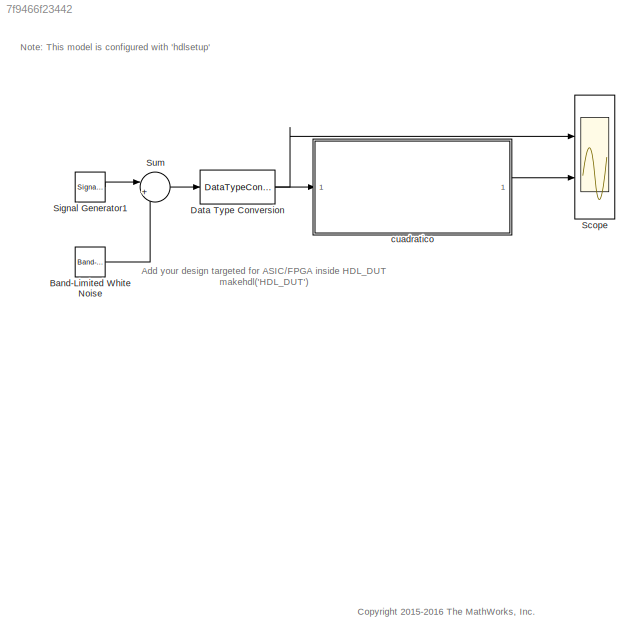
MODEL slx_7f9466f23442
KIND model
CONFIG AbsTol = auto
CONFIG EnableMultiTasking = off
CONFIG FixedStep = auto
CONFIG MaxStep = auto
CONFIG MinStep = auto
CONFIG RelTol = 1e-3
CONFIG SampleTimeConstraint = Unconstrained
CONFIG Solver = VariableStepAuto
CONFIG SolverName = VariableStepAuto
CONFIG StartTime = 0.0
CONFIG StopTime = 10.0
BLOCK [Reference] Band-Limited White Noise  REF=simulink/Sources/Band-Limited
White Noise
  Ports = [0, 1]
  SourceBlock = simulink/Sources/Band-Limited\nWhite Noise
  SourceProductBaseCode = SL
  SourceProductName = Simulink
  SourceType = Band-Limited White Noise.
BLOCK [DataTypeConversion] Data Type Conversion
  OutDataTypeStr = fixdt(1,16,10)
  RndMeth = Floor
  SaturateOnIntegerOverflow = off
BLOCK [Scope] Scope
  NumInputPorts = 2
  Ports = [2]
  ScopeSpecificationString = Simulink.scopes.TimeScopeBlockCfg('CurrentConfiguration', extmgr.ConfigurationSet(extmgr.Configuration('Core','General UI',true),extmgr.Configuration('Core','Source UI',true),extmgr.Configuration('Sources','WiredSimulink',true,'DataLoggingSaveFormat','Array','DataLoggingDecimation','1'),extmgr.Configuration('Visuals','Time Domain',true,'SerializedDisplays',{struct('MinYLimReal','-4.64136','MaxYLim...<+2282ch>
BLOCK [SignalGenerator] Signal Generator1
  Frequency = 2000
  Ports = [0, 1]
BLOCK [Sum] Sum
  IconShape = round
  InputSameDT = off
  Inputs = |++
  OutDataTypeStr = Inherit: Inherit via internal rule
  Ports = [2, 1]
  SaturateOnIntegerOverflow = off
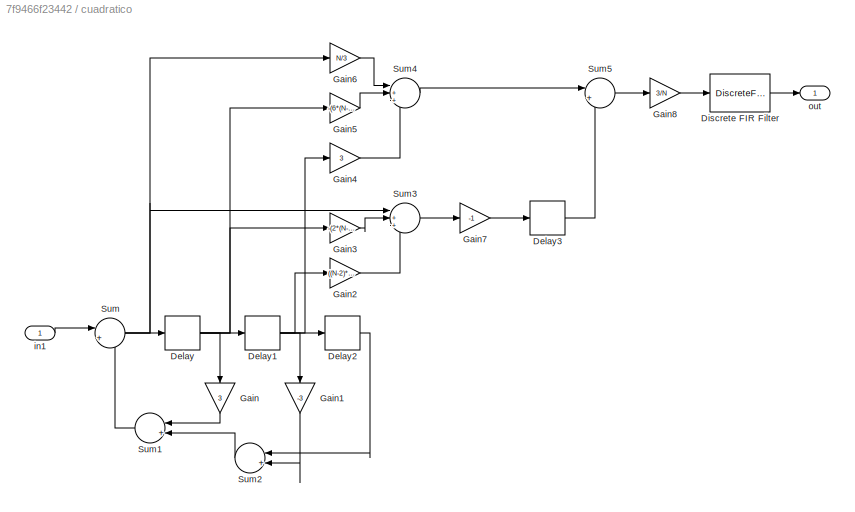
BLOCK [SubSystem] cuadratico
  Ports = [1, 1]
  RequestExecContextInheritance = off
  Variant = off
BLOCK [Delay] cuadratico/Delay
  DelayLength = 1
  InputPortMap = u0
  Ports = [1, 1]
BLOCK [Delay] cuadratico/Delay1
  DelayLength = 1
  InputPortMap = u0
  Ports = [1, 1]
BLOCK [Delay] cuadratico/Delay2
  DelayLength = 1
  InputPortMap = u0
  Ports = [1, 1]
BLOCK [Delay] cuadratico/Delay3
  DelayLength = N
  InputPortMap = u0
  Ports = [1, 1]
BLOCK [DiscreteFir] cuadratico/Discrete FIR Filter
  AccumDataTypeStr = fixdt(1,16,10)
  CoefDataTypeStr = fixdt(1,16,10)
  Coefficients = [0.2298 0.2098 0.1791 0.1557 0.1355 0.1127 0.0931 0.0749 0.0579 0.0422 0.0277 0.0146 0.0028 -0.0077 -0.0169 -0.0249 -0.0316 -0.0370 -0.0411 -0.0440 -0.0455 -0.0458 -0.0447 -0.0424 -0.0388 -0.0339 -0.0277 -0.0203 -0.0115 -0.0015 0.0097 0.0223 0.0362 0.0514 0.0679]
  InputPortMap = u0
  OutDataTypeStr = fixdt(1,16,10)
  OutputPortMap = o0
  Ports = [1, 1]
  ProductDataTypeStr = fixdt(1,16,10)
BLOCK [Gain] cuadratico/Gain
  Gain = 3
  OutDataTypeStr = Inherit: Inherit via internal rule
  ParamDataTypeStr = Inherit: Inherit via internal rule
  SaturateOnIntegerOverflow = off
BLOCK [Gain] cuadratico/Gain1
  Gain = -3
  OutDataTypeStr = Inherit: Inherit via internal rule
  ParamDataTypeStr = Inherit: Inherit via internal rule
  SaturateOnIntegerOverflow = off
BLOCK [Gain] cuadratico/Gain2
  Gain = ((N-2)*(N-3))/((N+1)*(N+2))
  OutDataTypeStr = Inherit: Inherit via internal rule
  ParamDataTypeStr = Inherit: Inherit via internal rule
  SaturateOnIntegerOverflow = off
BLOCK [Gain] cuadratico/Gain3
  Gain = -(2*(N-3))/(N+1)
  OutDataTypeStr = Inherit: Inherit via internal rule
  ParamDataTypeStr = Inherit: Inherit via internal rule
  SaturateOnIntegerOverflow = off
BLOCK [Gain] cuadratico/Gain4
  Gain = 3
  OutDataTypeStr = Inherit: Inherit via internal rule
  ParamDataTypeStr = Inherit: Inherit via internal rule
  SaturateOnIntegerOverflow = off
BLOCK [Gain] cuadratico/Gain5
  Gain = -(6*(N-1))/(N+1)
  OutDataTypeStr = Inherit: Inherit via internal rule
  ParamDataTypeStr = Inherit: Inherit via internal rule
  SaturateOnIntegerOverflow = off
BLOCK [Gain] cuadratico/Gain6
  Gain = N/3
  OutDataTypeStr = Inherit: Inherit via internal rule
  ParamDataTypeStr = Inherit: Inherit via internal rule
  SaturateOnIntegerOverflow = off
BLOCK [Gain] cuadratico/Gain7
  Gain = -1
  OutDataTypeStr = Inherit: Inherit via internal rule
  ParamDataTypeStr = Inherit: Inherit via internal rule
  SaturateOnIntegerOverflow = off
BLOCK [Gain] cuadratico/Gain8
  Gain = 3/N
  OutDataTypeStr = Inherit: Inherit via internal rule
  ParamDataTypeStr = Inherit: Inherit via internal rule
  SaturateOnIntegerOverflow = off
BLOCK [Sum] cuadratico/Sum
  AccumDataTypeStr = fixdt(1,16,10)
  IconShape = round
  InputSameDT = off
  Inputs = |++
  OutDataTypeStr = fixdt(1,16,10)
  Ports = [2, 1]
  SaturateOnIntegerOverflow = off
BLOCK [Sum] cuadratico/Sum1
  AccumDataTypeStr = fixdt(1,16,10)
  IconShape = round
  InputSameDT = off
  Inputs = |++
  OutDataTypeStr = fixdt(1,16,10)
  Ports = [2, 1]
  SaturateOnIntegerOverflow = off
BLOCK [Sum] cuadratico/Sum2
  AccumDataTypeStr = fixdt(1,16,10)
  IconShape = round
  InputSameDT = off
  Inputs = |++
  OutDataTypeStr = fixdt(1,16,10)
  Ports = [2, 1]
  SaturateOnIntegerOverflow = off
BLOCK [Sum] cuadratico/Sum3
  AccumDataTypeStr = fixdt(1,16,10)
  IconShape = round
  InputSameDT = off
  Inputs = |+++
  OutDataTypeStr = fixdt(1,16,10)
  Ports = [3, 1]
  SaturateOnIntegerOverflow = off
BLOCK [Sum] cuadratico/Sum4
  AccumDataTypeStr = fixdt(1,16,10)
  IconShape = round
  InputSameDT = off
  Inputs = |+++
  OutDataTypeStr = fixdt(1,16,10)
  Ports = [3, 1]
  SaturateOnIntegerOverflow = off
BLOCK [Sum] cuadratico/Sum5
  AccumDataTypeStr = fixdt(1,16,10)
  IconShape = round
  InputSameDT = off
  Inputs = |++
  OutDataTypeStr = fixdt(1,16,10)
  Ports = [2, 1]
  SaturateOnIntegerOverflow = off
BLOCK [Inport] cuadratico/in1
  IconDisplay = Port number
  OutDataTypeStr = fixdt(1, 16, 10)
  SampleTime = 0
BLOCK [Outport] cuadratico/out
  IconDisplay = Port number
  OutDataTypeStr = fixdt(1,16,10)
ANNOTATION (root): Add your design targeted for ASIC/FPGA inside HDL_DUT makehdl('HDL_DUT')
ANNOTATION (root): Note: This model is configured with ' hdlsetup '
ANNOTATION (root): <copyright redacted>
LINE Band-Limited White Noise:1 -> Sum:2
NET Data Type Conversion:1 -> Scope:1, cuadratico:1
LINE Signal Generator1:1 -> Sum:1
LINE Sum:1 -> Data Type Conversion:1
NET cuadratico/Delay1:1 -> cuadratico/Delay2:1, cuadratico/Gain1:1, cuadratico/Gain2:1, cuadratico/Gain4:1
LINE cuadratico/Delay2:1 -> cuadratico/Sum2:1
LINE cuadratico/Delay3:1 -> cuadratico/Sum5:2
NET cuadratico/Delay:1 -> cuadratico/Delay1:1, cuadratico/Gain3:1, cuadratico/Gain5:1, cuadratico/Gain:1
LINE cuadratico/Discrete FIR Filter:1 -> cuadratico/out:1
LINE cuadratico/Gain1:1 -> cuadratico/Sum2:2
LINE cuadratico/Gain2:1 -> cuadratico/Sum3:3
LINE cuadratico/Gain3:1 -> cuadratico/Sum3:2
LINE cuadratico/Gain4:1 -> cuadratico/Sum4:3
LINE cuadratico/Gain5:1 -> cuadratico/Sum4:2
LINE cuadratico/Gain6:1 -> cuadratico/Sum4:1
LINE cuadratico/Gain7:1 -> cuadratico/Delay3:1
LINE cuadratico/Gain8:1 -> cuadratico/Discrete FIR Filter:1
LINE cuadratico/Gain:1 -> cuadratico/Sum1:1
LINE cuadratico/Sum1:1 -> cuadratico/Sum:2
LINE cuadratico/Sum2:1 -> cuadratico/Sum1:2
LINE cuadratico/Sum3:1 -> cuadratico/Gain7:1
LINE cuadratico/Sum4:1 -> cuadratico/Sum5:1
LINE cuadratico/Sum5:1 -> cuadratico/Gain8:1
NET cuadratico/Sum:1 -> cuadratico/Delay:1, cuadratico/Gain6:1, cuadratico/Sum3:1
LINE cuadratico/in1:1 -> cuadratico/Sum:1
LINE cuadratico:1 -> Scope:2
note: NET lines group one-source signal fan-out (src -> all destinations, sorted); 1:1 wires keep LINE
